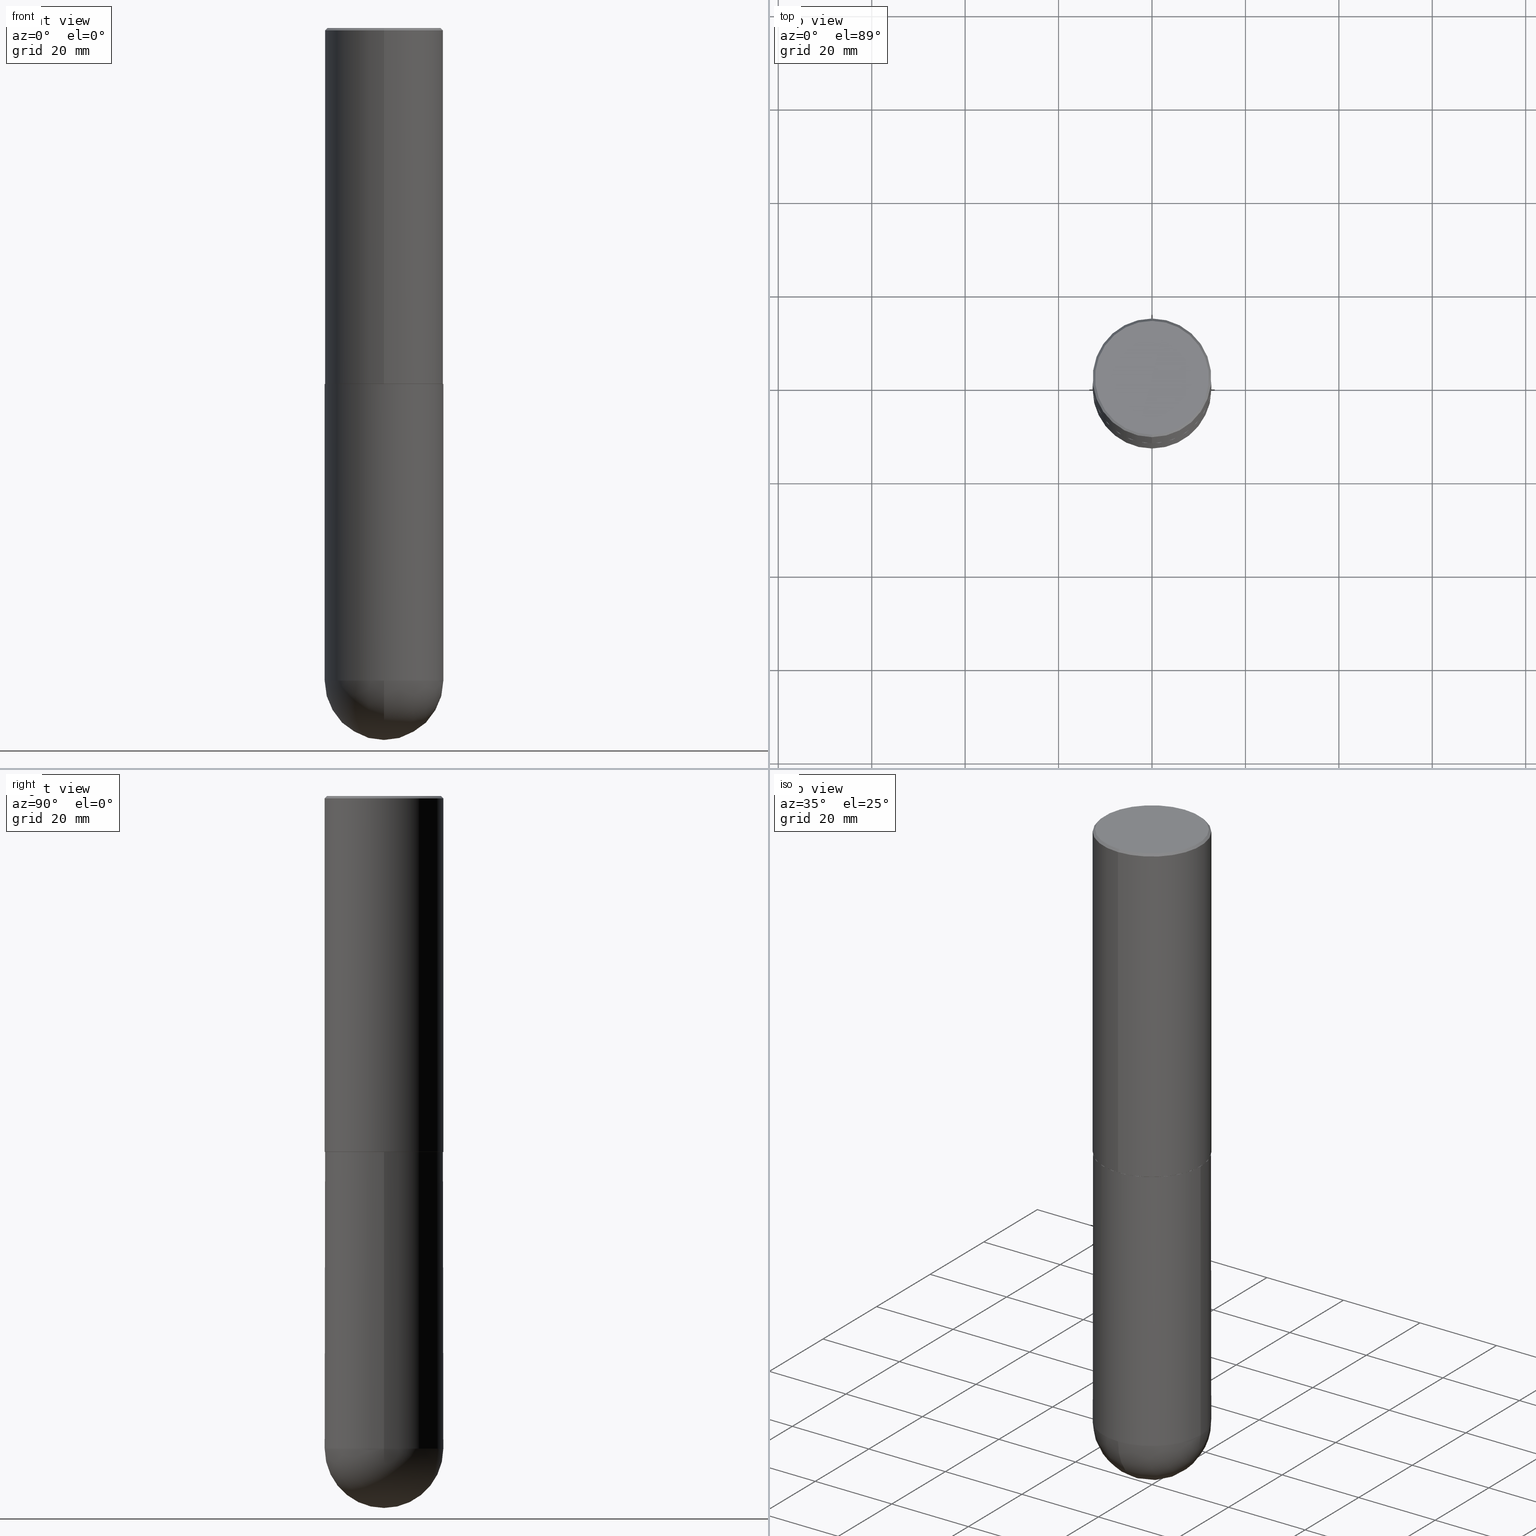
[diagram: canonical four-view strip — front | top / right | iso, engineering-drawing reading convention]
A machine part, canonical four-view strip (front | top / right | iso — engineering-drawing reading convention). The complete STEP part file that produces these views, byte-faithful:
ISO-10303-21;
HEADER;
FILE_DESCRIPTION (( 'STEP AP203' ),
    '1' );
FILE_NAME ('31987.STEP',
    '2024-02-21T17:29:10',
    ( '' ),
    ( '' ),
    'SwSTEP 2.0',
    'SolidWorks 2023',
    '' );
FILE_SCHEMA (( 'CONFIG_CONTROL_DESIGN' ));
ENDSEC;

DATA;
#1 = AXIS2_PLACEMENT_3D ( 'NONE', #324, #161, #390 ) ;
#2 = EDGE_LOOP ( 'NONE', ( #16, #385, #302, #40 ) ) ;
#3 = CLOSED_SHELL ( 'NONE', ( #54, #268, #387, #381, #130 ) ) ;
#4 = EDGE_CURVE ( 'NONE', #243, #206, #263, .T. ) ;
#5 = DIRECTION ( 'NONE',  ( 1.000000000000000000, -6.982962677686266711E-15, 4.876176775795935793E-29 ) ) ;
#6 = DIRECTION ( 'NONE',  ( 1.000000000000000000, -6.982962677686266711E-15, 4.876176775795935793E-29 ) ) ;
#7 = CARTESIAN_POINT ( 'NONE',  ( 1.345007843401825128E-28, -1.920314736363730603E-14, -5.500000000000000888 ) ) ;
#8 = CC_DESIGN_PERSON_AND_ORGANIZATION_ASSIGNMENT ( #241, #80, ( #90 ) ) ;
#9 = AXIS2_PLACEMENT_3D ( 'NONE', #41, #379, #201 ) ;
#10 = LINE ( 'NONE', #327, #348 ) ;
#11 = PLANE ( 'NONE',  #247 ) ;
#12 = DIRECTION ( 'NONE',  ( 5.024295867788231995E-15, 0.7071067811865739960, 0.7071067811865208164 ) ) ;
#13 = ORIENTED_EDGE ( 'NONE', *, *, #222, .F. ) ;
#14 = PERSON_AND_ORGANIZATION_ROLE ( 'design_owner' ) ;
#15 = DIRECTION ( 'NONE',  ( -6.982962677686265922E-15, -1.000000000000000000, 3.491176150280740574E-15 ) ) ;
#16 = ORIENTED_EDGE ( 'NONE', *, *, #361, .F. ) ;
#17 = DIRECTION ( 'NONE',  ( -2.445681918219229661E-29, 3.491176150280740574E-15, 1.000000000000000000 ) ) ;
#18 = DIRECTION ( 'NONE',  ( -2.445681918219229661E-29, 3.491176150280740574E-15, 1.000000000000000000 ) ) ;
#19 = APPROVAL_STATUS ( 'not_yet_approved' ) ;
#20 = VERTEX_POINT ( 'NONE', #162 ) ;
#21 = FACE_OUTER_BOUND ( 'NONE', #2, .T. ) ;
#22 = ORIENTED_EDGE ( 'NONE', *, *, #214, .F. ) ;
#23 = DIRECTION ( 'NONE',  ( -6.982962677686265922E-15, -1.000000000000000000, 3.284787166730577015E-15 ) ) ;
#24 = DIRECTION ( 'NONE',  ( -1.000000000000000000, 6.982962677686265922E-15, -4.883557194083112901E-29 ) ) ;
#25 = CIRCLE ( 'NONE', #31, 0.5000000000000000000 ) ;
#26 = CARTESIAN_POINT ( 'NONE',  ( 3.351822085289412675E-15, 0.4800000000000007039, -2.042929871538370540E-15 ) ) ;
#27 = AXIS2_PLACEMENT_3D ( 'NONE', #26, #370, #408 ) ;
#28 = VECTOR ( 'NONE', #184, 39.37007874015748143 ) ;
#29 = EDGE_CURVE ( 'NONE', #395, #87, #396, .T. ) ;
#30 = DIRECTION ( 'NONE',  ( -2.445468806185136597E-29, 3.491481338843145583E-15, 1.000000000000000000 ) ) ;
#31 = AXIS2_PLACEMENT_3D ( 'NONE', #33, #62, #295 ) ;
#32 = CYLINDRICAL_SURFACE ( 'NONE', #155, 0.5000000000000000000 ) ;
#33 = CARTESIAN_POINT ( 'NONE',  ( 7.336406418555409790E-29, -1.047444401652943635E-14, -3.000000000000000444 ) ) ;
#34 = EDGE_CURVE ( 'NONE', #299, #206, #398, .T. ) ;
#35 = DIRECTION ( 'NONE',  ( 1.000000000000000000, -6.982962677686265922E-15, 4.883557194083112340E-29 ) ) ;
#36 = CIRCLE ( 'NONE', #220, 0.5000000000000000000 ) ;
#37 = LOCAL_TIME ( 12, 29, 10.00000000000000000, #174 ) ;
#38 = DIRECTION ( 'NONE',  ( -6.982962677686265922E-15, -1.000000000000000000, 3.491176150280740574E-15 ) ) ;
#39 = CALENDAR_DATE ( 2024, 21, 2 ) ;
#40 = ORIENTED_EDGE ( 'NONE', *, *, #34, .F. ) ;
#41 = CARTESIAN_POINT ( 'NONE',  ( 7.334600072739471352E-29, -1.047003727469194245E-14, -2.999000000000000554 ) ) ;
#42 = EDGE_LOOP ( 'NONE', ( #291, #170 ) ) ;
#43 = PERSON_AND_ORGANIZATION ( #393, #84 ) ;
#44 = EDGE_CURVE ( 'NONE', #223, #395, #284, .T. ) ;
#45 = DIRECTION ( 'NONE',  ( 6.982962677686265922E-15, 1.000000000000000000, -3.491643216902136408E-15 ) ) ;
#46 = ORIENTED_EDGE ( 'NONE', *, *, #249, .T. ) ;
#47 = AXIS2_PLACEMENT_3D ( 'NONE', #127, #30, #261 ) ;
#48 = PERSON_AND_ORGANIZATION ( #393, #84 ) ;
#49 = AXIS2_PLACEMENT_3D ( 'NONE', #338, #380, #45 ) ;
#50 = DIRECTION ( 'NONE',  ( -6.982962677686265922E-15, -1.000000000000000000, 3.491176150280740179E-15 ) ) ;
#51 = VERTEX_POINT ( 'NONE', #103 ) ;
#52 = DIRECTION ( 'NONE',  ( 0.000000000000000000, 0.000000000000000000, 1.000000000000000000 ) ) ;
#53 = DIRECTION ( 'NONE',  ( 6.982962677686265922E-15, 1.000000000000000000, -4.370956789862816416E-15 ) ) ;
#54 = ADVANCED_FACE ( 'NONE', ( #391 ), #167, .T. ) ;
#55 = DIRECTION ( 'NONE',  ( 1.000000000000000000, 0.000000000000000000, 0.000000000000000000 ) ) ;
#56 = CARTESIAN_POINT ( 'NONE',  ( 7.336406418555409790E-29, -1.047444401652943635E-14, -3.000000000000000444 ) ) ;
#57 = CIRCLE ( 'NONE', #288, 0.5000000000000000000 ) ;
#58 = ADVANCED_FACE ( 'NONE', ( #192 ), #231, .T. ) ;
#59 = AXIS2_PLACEMENT_3D ( 'NONE', #143, #24, #180 ) ;
#60 = APPLICATION_CONTEXT ( 'configuration controlled 3d designs of mechanical parts and assemblies' ) ;
#61 = ORIENTED_EDGE ( 'NONE', *, *, #300, .T. ) ;
#62 = DIRECTION ( 'NONE',  ( -2.445468806185136597E-29, 3.491481338843145583E-15, 1.000000000000000000 ) ) ;
#63 = AXIS2_PLACEMENT_3D ( 'NONE', #177, #18, #308 ) ;
#64 = EDGE_LOOP ( 'NONE', ( #331, #275, #262, #13 ) ) ;
#65 = DIRECTION ( 'NONE',  ( -2.445681918219229661E-29, 3.491176150280740574E-15, 1.000000000000000000 ) ) ;
#66 = PRODUCT ( '31987', '31987', '', ( #311 ) ) ;
#67 = CARTESIAN_POINT ( 'NONE',  ( 3.421651712066272818E-15, 0.4800000000000007039, -2.410095190941982686E-15 ) ) ;
#68 = ORIENTED_EDGE ( 'NONE', *, *, #117, .T. ) ;
#69 = CARTESIAN_POINT ( 'NONE',  ( 1.345007843401825128E-28, -1.920314736363730603E-14, -5.500000000000000888 ) ) ;
#70 = ORIENTED_EDGE ( 'NONE', *, *, #382, .T. ) ;
#71 = AXIS2_PLACEMENT_3D ( 'NONE', #100, #156, #6 ) ;
#72 = PERSON_AND_ORGANIZATION ( #393, #84 ) ;
#73 = AXIS2_PLACEMENT_3D ( 'NONE', #365, #65, #38 ) ;
#74 = FACE_OUTER_BOUND ( 'NONE', #359, .T. ) ;
#75 = ORIENTED_EDGE ( 'NONE', *, *, #410, .T. ) ;
#76 = EDGE_CURVE ( 'NONE', #87, #371, #235, .T. ) ;
#77 =( LENGTH_UNIT ( ) NAMED_UNIT ( * ) SI_UNIT ( $, .METRE. ) );
#78 = CARTESIAN_POINT ( 'NONE',  ( -0.5000000000000000000, 3.552713678800500929E-15, -2.459467545127452891E-29 ) ) ;
#79 = ORIENTED_EDGE ( 'NONE', *, *, #166, .F. ) ;
#80 = PERSON_AND_ORGANIZATION_ROLE ( 'design_supplier' ) ;
#81 = DIRECTION ( 'NONE',  ( -6.982962677686265922E-15, -1.000000000000000000, 3.284787166730577015E-15 ) ) ;
#82 = VERTEX_POINT ( 'NONE', #228 ) ;
#83 = CARTESIAN_POINT ( 'NONE',  ( -0.5000000000000000000, -1.128608201128287263E-14, -5.500000000000000888 ) ) ;
#84 = ORGANIZATION ( 'UNSPECIFIED', 'UNSPECIFIED', '' ) ;
#85 = APPROVAL ( #236, 'UNSPECIFIED' ) ;
#86 = CARTESIAN_POINT ( 'NONE',  ( 7.337045754657690105E-29, -1.047352845084222488E-14, -3.000000000000000888 ) ) ;
#87 = VERTEX_POINT ( 'NONE', #196 ) ;
#88 = COORDINATED_UNIVERSAL_TIME_OFFSET ( 5, 0, .BEHIND. ) ;
#89 = CARTESIAN_POINT ( 'NONE',  ( 0.5000000000000000000, -3.491481338843133355E-15, 2.438088387897967896E-29 ) ) ;
#90 = PRODUCT_DEFINITION_FORMATION_WITH_SPECIFIED_SOURCE ( 'ANY', '', #66, .NOT_KNOWN. ) ;
#91 = APPROVAL_PERSON_ORGANIZATION ( #332, #225, #296 ) ;
#92 = CC_DESIGN_DATE_AND_TIME_ASSIGNMENT ( #266, #176, ( #399 ) ) ;
#93 = EDGE_CURVE ( 'NONE', #371, #223, #150, .T. ) ;
#94 = CIRCLE ( 'NONE', #9, 0.5000000000000004441 ) ;
#95 = PRODUCT_RELATED_PRODUCT_CATEGORY ( 'detail', '', ( #66 ) ) ;
#96 = ORIENTED_EDGE ( 'NONE', *, *, #29, .F. ) ;
#97 = CARTESIAN_POINT ( 'NONE',  ( 1.795939165325206540E-44, -2.563677612624204865E-30, -7.343306388072249820E-16 ) ) ;
#98 = DIRECTION ( 'NONE',  ( -2.445681918219229661E-29, 3.491176150280740574E-15, 1.000000000000000000 ) ) ;
#99 = DIRECTION ( 'NONE',  ( 6.982962677686265922E-15, 1.000000000000000000, 0.000000000000000000 ) ) ;
#100 = CARTESIAN_POINT ( 'NONE',  ( 0.000000000000000000, 0.000000000000000000, 0.000000000000000000 ) ) ;
#101 = LINE ( 'NONE', #229, #120 ) ;
#102 = APPROVAL_DATE_TIME ( #346, #158 ) ;
#103 = CARTESIAN_POINT ( 'NONE',  ( -3.484498376165373188E-15, -0.4990000000000104352, -2.999999999999999112 ) ) ;
#104 = EDGE_CURVE ( 'NONE', #108, #51, #154, .T. ) ;
#105 = ORIENTED_EDGE ( 'NONE', *, *, #76, .T. ) ;
#106 = CARTESIAN_POINT ( 'NONE',  ( 0.000000000000000000, 0.000000000000000000, 0.000000000000000000 ) ) ;
#107 = DIRECTION ( 'NONE',  ( -2.445681918219229661E-29, 3.491176150280740574E-15, 1.000000000000000000 ) ) ;
#108 = VERTEX_POINT ( 'NONE', #297 ) ;
#109 = DIRECTION ( 'NONE',  ( -4.937700262164715281E-15, -0.7071067811865691111, 0.7071067811865257013 ) ) ;
#110 = VERTEX_POINT ( 'NONE', #67 ) ;
#111 = EDGE_CURVE ( 'NONE', #20, #168, #25, .T. ) ;
#112 = PERSON_AND_ORGANIZATION_ROLE ( 'creator' ) ;
#113 = DIRECTION ( 'NONE',  ( -2.445681918219229661E-29, 3.491176150280740574E-15, 1.000000000000000000 ) ) ;
#114 = EDGE_LOOP ( 'NONE', ( #310, #46 ) ) ;
#115 = CARTESIAN_POINT ( 'NONE',  ( -3.430248998885764992E-15, -0.5000000000000001110, -0.01999999999999835937 ) ) ;
#116 = DIRECTION ( 'NONE',  ( -2.445681918219229661E-29, 3.491176150280740574E-15, 1.000000000000000000 ) ) ;
#117 = EDGE_CURVE ( 'NONE', #306, #223, #259, .T. ) ;
#118 =( GEOMETRIC_REPRESENTATION_CONTEXT ( 3 ) GLOBAL_UNCERTAINTY_ASSIGNED_CONTEXT ( ( #281 ) ) GLOBAL_UNIT_ASSIGNED_CONTEXT ( ( #376, #373, #401 ) ) REPRESENTATION_CONTEXT ( 'NONE', 'WORKASPACE' ) );
#119 = VECTOR ( 'NONE', #149, 39.37007874015748143 ) ;
#120 = VECTOR ( 'NONE', #188, 39.37007874015748854 ) ;
#121 = ORIENTED_EDGE ( 'NONE', *, *, #93, .T. ) ;
#122 = DIRECTION ( 'NONE',  ( -2.445681918219229661E-29, 3.491176150280740574E-15, 1.000000000000000000 ) ) ;
#123 = EDGE_CURVE ( 'NONE', #82, #206, #101, .T. ) ;
#124 = ORIENTED_EDGE ( 'NONE', *, *, #44, .F. ) ;
#125 = ORIENTED_EDGE ( 'NONE', *, *, #104, .T. ) ;
#126 = DIMENSIONAL_EXPONENTS ( 1.000000000000000000, 0.000000000000000000, 0.000000000000000000, 0.000000000000000000, 0.000000000000000000, 0.000000000000000000, 0.000000000000000000 ) ;
#127 = CARTESIAN_POINT ( 'NONE',  ( 1.345007843401825128E-28, -1.920314736363730603E-14, -5.500000000000000888 ) ) ;
#128 = AXIS2_PLACEMENT_3D ( 'NONE', #411, #276, #50 ) ;
#129 = CARTESIAN_POINT ( 'NONE',  ( 3.545608251442972496E-15, 0.4989999999999895630, -3.000000000000002220 ) ) ;
#130 = ADVANCED_FACE ( 'NONE', ( #74 ), #32, .T. ) ;
#131 = CARTESIAN_POINT ( 'NONE',  ( 1.345007843401825128E-28, -1.920314736363730603E-14, -5.500000000000000888 ) ) ;
#132 = EDGE_LOOP ( 'NONE', ( #271, #136, #406, #202, #121 ) ) ;
#133 = PERSON_AND_ORGANIZATION ( #393, #84 ) ;
#134 = DIRECTION ( 'NONE',  ( -2.445681918219229381E-29, 3.491176150280740574E-15, 1.000000000000000000 ) ) ;
#135 = COORDINATED_UNIVERSAL_TIME_OFFSET ( 5, 0, .BEHIND. ) ;
#136 = ORIENTED_EDGE ( 'NONE', *, *, #349, .T. ) ;
#137 = APPROVAL_PERSON_ORGANIZATION ( #72, #85, #204 ) ;
#138 = PERSON_AND_ORGANIZATION ( #393, #84 ) ;
#139 = CARTESIAN_POINT ( 'NONE',  ( 0.000000000000000000, 0.000000000000000000, 0.000000000000000000 ) ) ;
#140 = ORIENTED_EDGE ( 'NONE', *, *, #410, .F. ) ;
#141 = FACE_OUTER_BOUND ( 'NONE', #42, .T. ) ;
#142 = ORIENTED_EDGE ( 'NONE', *, *, #349, .F. ) ;
#143 = CARTESIAN_POINT ( 'NONE',  ( 1.311895865610436840E-28, -1.967732973177735475E-14, -5.500000000000000888 ) ) ;
#144 = DIRECTION ( 'NONE',  ( -1.000000000000000000, 6.982962677686265922E-15, -4.883557194083112901E-29 ) ) ;
#145 = CONICAL_SURFACE ( 'NONE', #285, 0.5000000000000000000, 0.7853981633974467247 ) ;
#146 = LINE ( 'NONE', #78, #119 ) ;
#147 = EDGE_CURVE ( 'NONE', #110, #299, #10, .T. ) ;
#148 = MANIFOLD_SOLID_BREP ( 'Body-Move/Copy2[1]', #3 ) ;
#149 = DIRECTION ( 'NONE',  ( -2.445468806185136877E-29, 3.491481338843145188E-15, 1.000000000000000000 ) ) ;
#150 = CIRCLE ( 'NONE', #287, 0.5000000000000000000 ) ;
#151 = APPROVAL_PERSON_ORGANIZATION ( #133, #158, #248 ) ;
#152 = CC_DESIGN_PERSON_AND_ORGANIZATION_ASSIGNMENT ( #48, #112, ( #399 ) ) ;
#153 = MANIFOLD_SOLID_BREP ( 'Body-Move/Copy2[2]', #157 ) ;
#154 = CIRCLE ( 'NONE', #215, 0.4989999999999999991 ) ;
#155 = AXIS2_PLACEMENT_3D ( 'NONE', #294, #164, #5 ) ;
#156 = DIRECTION ( 'NONE',  ( -2.445468806185136597E-29, 3.491481338843145583E-15, 1.000000000000000000 ) ) ;
#157 = CLOSED_SHELL ( 'NONE', ( #185, #58, #218, #286, #240, #257, #203, #334 ) ) ;
#158 = APPROVAL ( #407, 'UNSPECIFIED' ) ;
#159 = DIRECTION ( 'NONE',  ( -2.445468806185136597E-29, 3.491481338843145583E-15, 1.000000000000000000 ) ) ;
#160 = EDGE_LOOP ( 'NONE', ( #79, #125, #209, #22 ) ) ;
#161 = DIRECTION ( 'NONE',  ( -1.000000000000000000, 7.105427357601001070E-15, -4.926315508542082329E-29 ) ) ;
#162 = CARTESIAN_POINT ( 'NONE',  ( 0.5000000000000000000, -1.396592535537257129E-14, -3.000000000000000444 ) ) ;
#163 = FACE_OUTER_BOUND ( 'NONE', #265, .T. ) ;
#164 = DIRECTION ( 'NONE',  ( -2.445468806185136597E-29, 3.491481338843145583E-15, 1.000000000000000000 ) ) ;
#165 = CONICAL_SURFACE ( 'NONE', #49, 0.5000000000000000000, 0.7853981633974467247 ) ;
#166 = EDGE_CURVE ( 'NONE', #108, #343, #227, .T. ) ;
#167 = CYLINDRICAL_SURFACE ( 'NONE', #71, 0.5000000000000000000 ) ;
#168 = VERTEX_POINT ( 'NONE', #264 ) ;
#169 = SPHERICAL_SURFACE ( 'NONE', #216, 0.5000000000000005551 ) ;
#170 = ORIENTED_EDGE ( 'NONE', *, *, #104, .F. ) ;
#171 = CALENDAR_DATE ( 2024, 21, 2 ) ;
#172 = EDGE_CURVE ( 'NONE', #51, #108, #253, .T. ) ;
#173 = CARTESIAN_POINT ( 'NONE',  ( 4.891363836438485106E-31, -6.982352300561518372E-17, -0.02000000000000010797 ) ) ;
#174 = COORDINATED_UNIVERSAL_TIME_OFFSET ( 5, 0, .BEHIND. ) ;
#175 = ORIENTED_EDGE ( 'NONE', *, *, #123, .T. ) ;
#176 = DATE_TIME_ROLE ( 'creation_date' ) ;
#177 = CARTESIAN_POINT ( 'NONE',  ( 7.334600072739471352E-29, -1.047003727469194245E-14, -2.999000000000000554 ) ) ;
#178 = EDGE_LOOP ( 'NONE', ( #189, #339, #277, #326 ) ) ;
#179 = CARTESIAN_POINT ( 'NONE',  ( 1.436307221642642309E-28, -2.139245423122024710E-14, -6.000000000000001776 ) ) ;
#180 = DIRECTION ( 'NONE',  ( 6.982962677686265922E-15, 1.000000000000000000, -4.370956789862816416E-15 ) ) ;
#181 = FACE_OUTER_BOUND ( 'NONE', #160, .T. ) ;
#182 = CIRCLE ( 'NONE', #1, 0.5000000000000005551 ) ;
#183 = LOCAL_TIME ( 12, 29, 10.00000000000000000, #135 ) ;
#184 = DIRECTION ( 'NONE',  ( -2.445681918219229661E-29, 3.491176150280740574E-15, 1.000000000000000000 ) ) ;
#185 = ADVANCED_FACE ( 'NONE', ( #397 ), #316, .T. ) ;
#186 = VECTOR ( 'NONE', #278, 39.37007874015748143 ) ;
#187 = CIRCLE ( 'NONE', #63, 0.5000000000000004441 ) ;
#188 = DIRECTION ( 'NONE',  ( -4.851104656540955597E-15, -0.7071067811865487940, -0.7071067811865461294 ) ) ;
#189 = ORIENTED_EDGE ( 'NONE', *, *, #123, .F. ) ;
#190 = DIRECTION ( 'NONE',  ( 2.438088387897960049E-29, -3.491481338843145188E-15, -1.000000000000000000 ) ) ;
#191 = DIRECTION ( 'NONE',  ( -2.445468806185136597E-29, 3.491481338843145583E-15, 1.000000000000000000 ) ) ;
#192 = FACE_OUTER_BOUND ( 'NONE', #199, .T. ) ;
#193 = EDGE_CURVE ( 'NONE', #82, #110, #383, .T. ) ;
#194 = DATE_TIME_ROLE ( 'classification_date' ) ;
#195 = EDGE_LOOP ( 'NONE', ( #234, #70, #96, #124 ) ) ;
#196 = CARTESIAN_POINT ( 'NONE',  ( -3.552713678800369978E-15, -0.5000000000000196509, -5.499999999999999112 ) ) ;
#197 = VECTOR ( 'NONE', #98, 39.37007874015748143 ) ;
#198 = AXIS2_PLACEMENT_3D ( 'NONE', #211, #107, #23 ) ;
#199 = EDGE_LOOP ( 'NONE', ( #362, #328, #140, #336 ) ) ;
#200 = APPLICATION_PROTOCOL_DEFINITION ( 'international standard', 'config_control_design', 1994, #412 ) ;
#201 = DIRECTION ( 'NONE',  ( -6.982962677686265133E-15, -1.000000000000000000, 3.278217592397113101E-15 ) ) ;
#202 = ORIENTED_EDGE ( 'NONE', *, *, #300, .F. ) ;
#203 = ADVANCED_FACE ( 'NONE', ( #141 ), #340, .F. ) ;
#204 = APPROVAL_ROLE ( '' ) ;
#205 = LINE ( 'NONE', #245, #409 ) ;
#206 = VERTEX_POINT ( 'NONE', #115 ) ;
#207 = SECURITY_CLASSIFICATION_LEVEL ( 'unclassified' ) ;
#208 = CARTESIAN_POINT ( 'NONE',  ( 7.337045754657688983E-29, -1.047352845084222330E-14, -3.000000000000000444 ) ) ;
#209 = ORIENTED_EDGE ( 'NONE', *, *, #222, .T. ) ;
#210 = LOCAL_TIME ( 12, 29, 10.00000000000000000, #230 ) ;
#211 = CARTESIAN_POINT ( 'NONE',  ( 7.337045754657690105E-29, -1.047352845084222488E-14, -3.000000000000000888 ) ) ;
#212 = SPHERICAL_SURFACE ( 'NONE', #59, 0.5000000000000005551 ) ;
#213 = CYLINDRICAL_SURFACE ( 'NONE', #279, 0.5000000000000002220 ) ;
#214 = EDGE_CURVE ( 'NONE', #343, #243, #187, .T. ) ;
#215 = AXIS2_PLACEMENT_3D ( 'NONE', #224, #122, #355 ) ;
#216 = AXIS2_PLACEMENT_3D ( 'NONE', #402, #144, #53 ) ;
#217 = PERSON_AND_ORGANIZATION ( #393, #84 ) ;
#218 = ADVANCED_FACE ( 'NONE', ( #242 ), #165, .T. ) ;
#219 = CARTESIAN_POINT ( 'NONE',  ( 3.552713678800501718E-15, 0.5000000000000002220, -1.745588075140371076E-15 ) ) ;
#220 = AXIS2_PLACEMENT_3D ( 'NONE', #56, #377, #335 ) ;
#221 = FACE_OUTER_BOUND ( 'NONE', #114, .T. ) ;
#222 = EDGE_CURVE ( 'NONE', #51, #243, #205, .T. ) ;
#223 = VERTEX_POINT ( 'NONE', #251 ) ;
#224 = CARTESIAN_POINT ( 'NONE',  ( 7.337045754657690105E-29, -1.047352845084222488E-14, -3.000000000000000888 ) ) ;
#225 = APPROVAL ( #19, 'UNSPECIFIED' ) ;
#226 = VECTOR ( 'NONE', #12, 39.37007874015748854 ) ;
#227 = LINE ( 'NONE', #129, #226 ) ;
#228 = CARTESIAN_POINT ( 'NONE',  ( -3.361644018908052422E-15, -0.4800000000000007039, 9.414339133275329191E-16 ) ) ;
#229 = CARTESIAN_POINT ( 'NONE',  ( -3.430248998885764992E-15, -0.5000000000000001110, -0.01999999999999835937 ) ) ;
#230 = COORDINATED_UNIVERSAL_TIME_OFFSET ( 5, 0, .BEHIND. ) ;
#231 = CYLINDRICAL_SURFACE ( 'NONE', #73, 0.5000000000000002220 ) ;
#232 = DATE_AND_TIME ( #238, #183 ) ;
#233 = CIRCLE ( 'NONE', #364, 0.4800000000000007039 ) ;
#234 = ORIENTED_EDGE ( 'NONE', *, *, #117, .F. ) ;
#235 = CIRCLE ( 'NONE', #341, 0.5000000000000000000 ) ;
#236 = APPROVAL_STATUS ( 'not_yet_approved' ) ;
#237 = LINE ( 'NONE', #89, #186 ) ;
#238 = CALENDAR_DATE ( 2024, 21, 2 ) ;
#239 = ORIENTED_EDGE ( 'NONE', *, *, #93, .F. ) ;
#240 = ADVANCED_FACE ( 'NONE', ( #21 ), #213, .T. ) ;
#241 = PERSON_AND_ORGANIZATION ( #393, #84 ) ;
#242 = FACE_OUTER_BOUND ( 'NONE', #246, .T. ) ;
#243 = VERTEX_POINT ( 'NONE', #345 ) ;
#244 = CARTESIAN_POINT ( 'NONE',  ( 4.891363836438485106E-31, -6.982352300561518372E-17, -0.02000000000000010797 ) ) ;
#245 = CARTESIAN_POINT ( 'NONE',  ( -3.484498376165373188E-15, -0.4990000000000104352, -2.999999999999999112 ) ) ;
#246 = EDGE_LOOP ( 'NONE', ( #368, #175, #75, #290 ) ) ;
#247 = AXIS2_PLACEMENT_3D ( 'NONE', #351, #190, #320 ) ;
#248 = APPROVAL_ROLE ( '' ) ;
#249 = EDGE_CURVE ( 'NONE', #168, #20, #36, .T. ) ;
#250 = FACE_OUTER_BOUND ( 'NONE', #195, .T. ) ;
#251 = CARTESIAN_POINT ( 'NONE',  ( 3.491481338843267462E-15, 0.4999999999999808487, -5.500000000000002665 ) ) ;
#252 = EDGE_CURVE ( 'NONE', #243, #343, #94, .T. ) ;
#253 = CIRCLE ( 'NONE', #350, 0.4989999999999999991 ) ;
#254 = SECURITY_CLASSIFICATION ( '', '', #207 ) ;
#255 = CARTESIAN_POINT ( 'NONE',  ( 4.891363836438485106E-31, -6.982352300561518372E-17, -0.02000000000000010797 ) ) ;
#256 = DIRECTION ( 'NONE',  ( -2.445468806185136597E-29, 3.491481338843145583E-15, 1.000000000000000000 ) ) ;
#257 = ADVANCED_FACE ( 'NONE', ( #181 ), #319, .T. ) ;
#258 = CARTESIAN_POINT ( 'NONE',  ( 0.5000000000000000000, -1.833027702892651007E-14, -5.500000000000000888 ) ) ;
#259 = CIRCLE ( 'NONE', #267, 0.5000000000000005551 ) ;
#260 = LOCAL_TIME ( 12, 29, 10.00000000000000000, #337 ) ;
#261 = DIRECTION ( 'NONE',  ( 1.000000000000000000, -6.982962677686270655E-15, 0.000000000000000000 ) ) ;
#262 = ORIENTED_EDGE ( 'NONE', *, *, #252, .F. ) ;
#263 = LINE ( 'NONE', #386, #197 ) ;
#264 = CARTESIAN_POINT ( 'NONE',  ( -0.5000000000000000000, -1.128608201128286947E-14, -3.000000000000000444 ) ) ;
#265 = EDGE_LOOP ( 'NONE', ( #375, #68, #239, #322 ) ) ;
#266 = DATE_AND_TIME ( #363, #210 ) ;
#267 = AXIS2_PLACEMENT_3D ( 'NONE', #329, #35, #99 ) ;
#268 = ADVANCED_FACE ( 'NONE', ( #250 ), #169, .T. ) ;
#269 = APPROVAL_DATE_TIME ( #274, #225 ) ;
#270 = LOCAL_TIME ( 12, 29, 10.00000000000000000, #88 ) ;
#271 = ORIENTED_EDGE ( 'NONE', *, *, #44, .T. ) ;
#272 = PERSON_AND_ORGANIZATION_ROLE ( 'creator' ) ;
#273 = CARTESIAN_POINT ( 'NONE',  ( 3.491481338843133355E-15, 0.4999999999999999445, -0.02000000000000185310 ) ) ;
#274 = DATE_AND_TIME ( #39, #37 ) ;
#275 = ORIENTED_EDGE ( 'NONE', *, *, #166, .T. ) ;
#276 = DIRECTION ( 'NONE',  ( -2.445681918219229661E-29, 3.491176150280740574E-15, 1.000000000000000000 ) ) ;
#277 = ORIENTED_EDGE ( 'NONE', *, *, #147, .T. ) ;
#278 = DIRECTION ( 'NONE',  ( -2.445468806185136877E-29, 3.491481338843145188E-15, 1.000000000000000000 ) ) ;
#279 = AXIS2_PLACEMENT_3D ( 'NONE', #139, #116, #405 ) ;
#280 = DIRECTION ( 'NONE',  ( -6.982962677686265922E-15, -1.000000000000000000, 3.284787166730577015E-15 ) ) ;
#281 = UNCERTAINTY_MEASURE_WITH_UNIT (LENGTH_MEASURE( 1.000000000000000082E-05 ), #376, 'distance_accuracy_value', 'NONE');
#282 = PERSON_AND_ORGANIZATION_ROLE ( 'classification_officer' ) ;
#283 = LINE ( 'NONE', #219, #28 ) ;
#284 = CIRCLE ( 'NONE', #315, 0.5000000000000000000 ) ;
#285 = AXIS2_PLACEMENT_3D ( 'NONE', #173, #301, #305 ) ;
#286 = ADVANCED_FACE ( 'NONE', ( #374 ), #145, .T. ) ;
#287 = AXIS2_PLACEMENT_3D ( 'NONE', #7, #191, #358 ) ;
#288 = AXIS2_PLACEMENT_3D ( 'NONE', #244, #17, #307 ) ;
#289 = CC_DESIGN_APPROVAL ( #225, ( #254 ) ) ;
#290 = ORIENTED_EDGE ( 'NONE', *, *, #147, .F. ) ;
#291 = ORIENTED_EDGE ( 'NONE', *, *, #172, .F. ) ;
#292 = PRODUCT_DEFINITION_SHAPE ( 'NONE', 'NONE',  #399 ) ;
#293 = DIRECTION ( 'NONE',  ( -6.982962677686265922E-15, -1.000000000000000000, 3.491643216902136408E-15 ) ) ;
#294 = CARTESIAN_POINT ( 'NONE',  ( 0.000000000000000000, 0.000000000000000000, 0.000000000000000000 ) ) ;
#295 = DIRECTION ( 'NONE',  ( 1.000000000000000000, -6.982962677686266711E-15, 0.000000000000000000 ) ) ;
#296 = APPROVAL_ROLE ( '' ) ;
#297 = CARTESIAN_POINT ( 'NONE',  ( 3.549160965121774973E-15, 0.4989999999999895630, -3.000000000000002220 ) ) ;
#298 = ADVANCED_BREP_SHAPE_REPRESENTATION ( '31987', ( #148, #153, #342 ), #118 ) ;
#299 = VERTEX_POINT ( 'NONE', #273 ) ;
#300 = EDGE_CURVE ( 'NONE', #371, #20, #237, .T. ) ;
#301 = DIRECTION ( 'NONE',  ( 2.445681918219229661E-29, -3.491176150280740574E-15, -1.000000000000000000 ) ) ;
#302 = ORIENTED_EDGE ( 'NONE', *, *, #4, .T. ) ;
#303 = DATE_AND_TIME ( #171, #260 ) ;
#304 = CC_DESIGN_DATE_AND_TIME_ASSIGNMENT ( #232, #194, ( #254 ) ) ;
#305 = DIRECTION ( 'NONE',  ( 6.982962677686265922E-15, 1.000000000000000000, -3.491643216902136408E-15 ) ) ;
#306 = VERTEX_POINT ( 'NONE', #179 ) ;
#307 = DIRECTION ( 'NONE',  ( -6.982962677686265922E-15, -1.000000000000000000, 3.491643216902136408E-15 ) ) ;
#308 = DIRECTION ( 'NONE',  ( -6.982962677686265133E-15, -1.000000000000000000, 3.278217592397113101E-15 ) ) ;
#309 = CC_DESIGN_PERSON_AND_ORGANIZATION_ASSIGNMENT ( #43, #14, ( #66 ) ) ;
#310 = ORIENTED_EDGE ( 'NONE', *, *, #111, .T. ) ;
#311 = MECHANICAL_CONTEXT ( 'NONE', #412, 'mechanical' ) ;
#312 = PLANE ( 'NONE',  #27 ) ;
#313 = CALENDAR_DATE ( 2024, 21, 2 ) ;
#314 = FACE_OUTER_BOUND ( 'NONE', #378, .T. ) ;
#315 = AXIS2_PLACEMENT_3D ( 'NONE', #131, #159, #357 ) ;
#316 = CONICAL_SURFACE ( 'NONE', #330, 0.4989999999999999991, 0.7853981633974824739 ) ;
#317 = CC_DESIGN_APPROVAL ( #85, ( #90 ) ) ;
#318 = AXIS2_PLACEMENT_3D ( 'NONE', #255, #360, #293 ) ;
#319 = CONICAL_SURFACE ( 'NONE', #198, 0.4989999999999999991, 0.7853981633974824739 ) ;
#320 = DIRECTION ( 'NONE',  ( -1.000000000000000000, 6.982962677686265922E-15, -4.876176775795935793E-29 ) ) ;
#321 = DIRECTION ( 'NONE',  ( -2.445681918219229661E-29, 3.491176150280740574E-15, 1.000000000000000000 ) ) ;
#322 = ORIENTED_EDGE ( 'NONE', *, *, #76, .F. ) ;
#323 = AXIS2_PLACEMENT_3D ( 'NONE', #208, #134, #15 ) ;
#324 = CARTESIAN_POINT ( 'NONE',  ( 1.311895865610436840E-28, -1.967732973177735475E-14, -5.500000000000000888 ) ) ;
#325 = CC_DESIGN_PERSON_AND_ORGANIZATION_ASSIGNMENT ( #138, #272, ( #90 ) ) ;
#326 = ORIENTED_EDGE ( 'NONE', *, *, #34, .T. ) ;
#327 = CARTESIAN_POINT ( 'NONE',  ( 3.491481338843133355E-15, 0.4999999999999999445, -0.02000000000000185310 ) ) ;
#328 = ORIENTED_EDGE ( 'NONE', *, *, #361, .T. ) ;
#329 = CARTESIAN_POINT ( 'NONE',  ( 1.311895865610436840E-28, -1.967732973177735475E-14, -5.500000000000000888 ) ) ;
#330 = AXIS2_PLACEMENT_3D ( 'NONE', #86, #113, #81 ) ;
#331 = ORIENTED_EDGE ( 'NONE', *, *, #172, .T. ) ;
#332 = PERSON_AND_ORGANIZATION ( #393, #84 ) ;
#333 = ORIENTED_EDGE ( 'NONE', *, *, #372, .T. ) ;
#334 = ADVANCED_FACE ( 'NONE', ( #314 ), #312, .F. ) ;
#335 = DIRECTION ( 'NONE',  ( 1.000000000000000000, -6.982962677686266711E-15, 0.000000000000000000 ) ) ;
#336 = ORIENTED_EDGE ( 'NONE', *, *, #4, .F. ) ;
#337 = COORDINATED_UNIVERSAL_TIME_OFFSET ( 5, 0, .BEHIND. ) ;
#338 = CARTESIAN_POINT ( 'NONE',  ( 4.891363836438485106E-31, -6.982352300561518372E-17, -0.02000000000000010797 ) ) ;
#339 = ORIENTED_EDGE ( 'NONE', *, *, #372, .F. ) ;
#340 = PLANE ( 'NONE',  #323 ) ;
#341 = AXIS2_PLACEMENT_3D ( 'NONE', #69, #256, #392 ) ;
#342 = AXIS2_PLACEMENT_3D ( 'NONE', #106, #52, #55 ) ;
#343 = VERTEX_POINT ( 'NONE', #347 ) ;
#344 = LENGTH_MEASURE_WITH_UNIT ( LENGTH_MEASURE( 0.02539999999999999897 ), #77 );
#345 = CARTESIAN_POINT ( 'NONE',  ( -3.491481338843062752E-15, -0.5000000000000108802, -2.998999999999998778 ) ) ;
#346 = DATE_AND_TIME ( #313, #270 ) ;
#347 = CARTESIAN_POINT ( 'NONE',  ( 3.552713678800539584E-15, 0.4999999999999900080, -2.999000000000001886 ) ) ;
#348 = VECTOR ( 'NONE', #388, 39.37007874015748143 ) ;
#349 = EDGE_CURVE ( 'NONE', #395, #168, #146, .T. ) ;
#350 = AXIS2_PLACEMENT_3D ( 'NONE', #394, #321, #280 ) ;
#351 = CARTESIAN_POINT ( 'NONE',  ( 3.491481338843206325E-15, 0.4999999999999895639, -3.000000000000001332 ) ) ;
#352 = DESIGN_CONTEXT ( 'detailed design', #60, 'design' ) ;
#353 = ORIENTED_EDGE ( 'NONE', *, *, #193, .T. ) ;
#354 = DIRECTION ( 'NONE',  ( -2.445681918219229661E-29, 3.491176150280740574E-15, 1.000000000000000000 ) ) ;
#355 = DIRECTION ( 'NONE',  ( -6.982962677686265922E-15, -1.000000000000000000, 3.284787166730577015E-15 ) ) ;
#356 = DIRECTION ( 'NONE',  ( -6.982962677686265922E-15, -1.000000000000000000, 3.491176150280740179E-15 ) ) ;
#357 = DIRECTION ( 'NONE',  ( 1.000000000000000000, -6.982962677686270655E-15, 0.000000000000000000 ) ) ;
#358 = DIRECTION ( 'NONE',  ( 1.000000000000000000, -6.982962677686270655E-15, 0.000000000000000000 ) ) ;
#359 = EDGE_LOOP ( 'NONE', ( #142, #403, #105, #61, #400 ) ) ;
#360 = DIRECTION ( 'NONE',  ( -2.445681918219229661E-29, 3.491176150280740574E-15, 1.000000000000000000 ) ) ;
#361 = EDGE_CURVE ( 'NONE', #343, #299, #283, .T. ) ;
#362 = ORIENTED_EDGE ( 'NONE', *, *, #252, .T. ) ;
#363 = CALENDAR_DATE ( 2024, 21, 2 ) ;
#364 = AXIS2_PLACEMENT_3D ( 'NONE', #97, #354, #356 ) ;
#365 = CARTESIAN_POINT ( 'NONE',  ( 0.000000000000000000, 0.000000000000000000, 0.000000000000000000 ) ) ;
#366 = SHAPE_DEFINITION_REPRESENTATION ( #292, #298 ) ;
#367 = CC_DESIGN_PERSON_AND_ORGANIZATION_ASSIGNMENT ( #217, #282, ( #254 ) ) ;
#368 = ORIENTED_EDGE ( 'NONE', *, *, #193, .F. ) ;
#369 = APPLICATION_PROTOCOL_DEFINITION ( 'international standard', 'config_control_design', 1994, #60 ) ;
#370 = DIRECTION ( 'NONE',  ( 2.445681918219229381E-29, -3.491176150280740574E-15, -1.000000000000000000 ) ) ;
#371 = VERTEX_POINT ( 'NONE', #258 ) ;
#372 = EDGE_CURVE ( 'NONE', #110, #82, #233, .T. ) ;
#373 =( NAMED_UNIT ( * ) PLANE_ANGLE_UNIT ( ) SI_UNIT ( $, .RADIAN. ) );
#374 = FACE_OUTER_BOUND ( 'NONE', #178, .T. ) ;
#375 = ORIENTED_EDGE ( 'NONE', *, *, #382, .F. ) ;
#376 =( CONVERSION_BASED_UNIT ( 'INCH', #344 ) LENGTH_UNIT ( ) NAMED_UNIT ( #126 ) );
#377 = DIRECTION ( 'NONE',  ( -2.445468806185136597E-29, 3.491481338843145583E-15, 1.000000000000000000 ) ) ;
#378 = EDGE_LOOP ( 'NONE', ( #333, #353 ) ) ;
#379 = DIRECTION ( 'NONE',  ( -2.445681918219229661E-29, 3.491176150280740574E-15, 1.000000000000000000 ) ) ;
#380 = DIRECTION ( 'NONE',  ( 2.445681918219229661E-29, -3.491176150280740574E-15, -1.000000000000000000 ) ) ;
#381 = ADVANCED_FACE ( 'NONE', ( #221 ), #11, .F. ) ;
#382 = EDGE_CURVE ( 'NONE', #306, #87, #182, .T. ) ;
#383 = CIRCLE ( 'NONE', #128, 0.4800000000000007039 ) ;
#384 = CC_DESIGN_SECURITY_CLASSIFICATION ( #254, ( #90 ) ) ;
#385 = ORIENTED_EDGE ( 'NONE', *, *, #214, .T. ) ;
#386 = CARTESIAN_POINT ( 'NONE',  ( -3.491481338843134539E-15, -0.5000000000000002220, 1.745588075140371076E-15 ) ) ;
#387 = ADVANCED_FACE ( 'NONE', ( #163 ), #212, .T. ) ;
#388 = DIRECTION ( 'NONE',  ( 4.937700262164540154E-15, 0.7071067811865440200, -0.7071067811865511255 ) ) ;
#389 = CC_DESIGN_APPROVAL ( #158, ( #399 ) ) ;
#390 = DIRECTION ( 'NONE',  ( -7.105427357601000281E-15, -1.000000000000000000, 0.000000000000000000 ) ) ;
#391 = FACE_OUTER_BOUND ( 'NONE', #132, .T. ) ;
#392 = DIRECTION ( 'NONE',  ( 1.000000000000000000, -6.982962677686270655E-15, 0.000000000000000000 ) ) ;
#393 = PERSON ( 'UNSPECIFIED', 'UNSPECIFIED', 'UNSPECIFIED', ('UNSPECIFIED'), ('UNSPECIFIED'), ('UNSPECIFIED') ) ;
#394 = CARTESIAN_POINT ( 'NONE',  ( 7.337045754657690105E-29, -1.047352845084222488E-14, -3.000000000000000888 ) ) ;
#395 = VERTEX_POINT ( 'NONE', #83 ) ;
#396 = CIRCLE ( 'NONE', #47, 0.5000000000000000000 ) ;
#397 = FACE_OUTER_BOUND ( 'NONE', #64, .T. ) ;
#398 = CIRCLE ( 'NONE', #318, 0.5000000000000000000 ) ;
#399 = PRODUCT_DEFINITION ( 'UNKNOWN', '', #90, #352 ) ;
#400 = ORIENTED_EDGE ( 'NONE', *, *, #249, .F. ) ;
#401 =( NAMED_UNIT ( * ) SI_UNIT ( $, .STERADIAN. ) SOLID_ANGLE_UNIT ( ) );
#402 = CARTESIAN_POINT ( 'NONE',  ( 1.311895865610436840E-28, -1.967732973177735475E-14, -5.500000000000000888 ) ) ;
#403 = ORIENTED_EDGE ( 'NONE', *, *, #29, .T. ) ;
#404 = APPROVAL_DATE_TIME ( #303, #85 ) ;
#405 = DIRECTION ( 'NONE',  ( -6.982962677686265922E-15, -1.000000000000000000, 3.491176150280740574E-15 ) ) ;
#406 = ORIENTED_EDGE ( 'NONE', *, *, #111, .F. ) ;
#407 = APPROVAL_STATUS ( 'not_yet_approved' ) ;
#408 = DIRECTION ( 'NONE',  ( 6.982962677686265922E-15, 1.000000000000000000, -3.491176150280740574E-15 ) ) ;
#409 = VECTOR ( 'NONE', #109, 39.37007874015748854 ) ;
#410 = EDGE_CURVE ( 'NONE', #206, #299, #57, .T. ) ;
#411 = CARTESIAN_POINT ( 'NONE',  ( 1.795939165325206540E-44, -2.563677612624204865E-30, -7.343306388072249820E-16 ) ) ;
#412 = APPLICATION_CONTEXT ( 'configuration controlled 3d designs of mechanical parts and assemblies' ) ;
ENDSEC;
END-ISO-10303-21;
